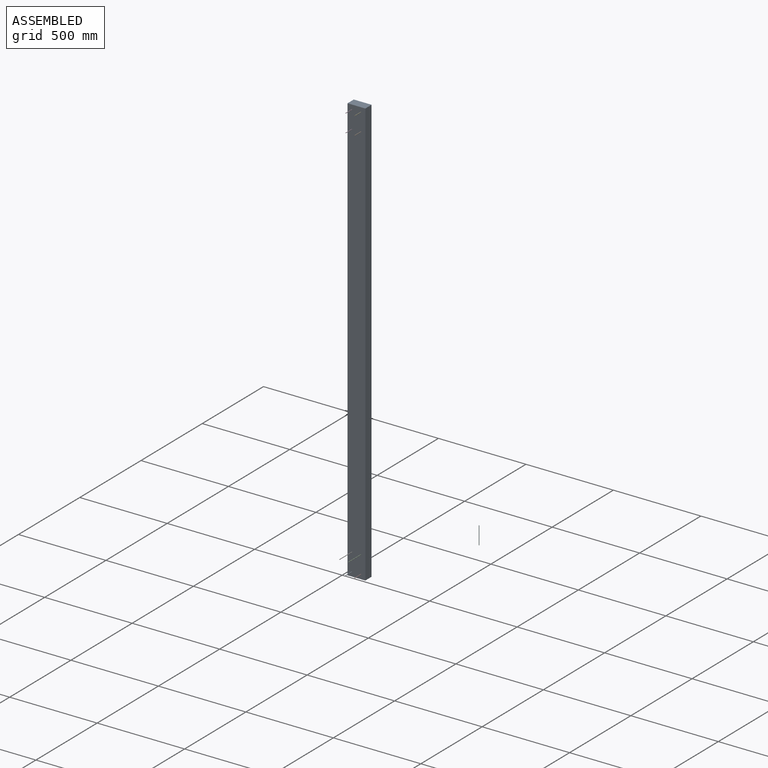
[diagram: assembled view]
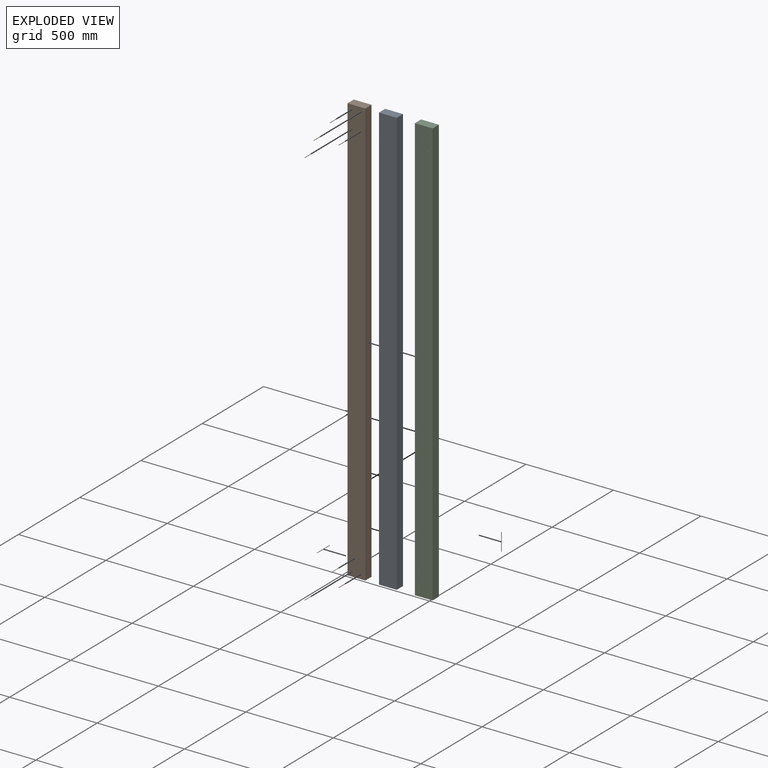
[diagram: exploded view]
GUIDED TOUR — MATED ASSEMBLY (Onshape document 711dff58935e790c66b12ace, AutoMate assembly 711dff58935e790c66b12ace_d7bd29eda4d21fefb9e0359d_4640ce76d5608ae84843be86_default)

This assembly has 12 components, labeled P0..P11 below (a component is one placed occurrence of a part; the same part can appear more than once), held together by 7 mates. A mate is a constraint between two components; its type names the relative motion it leaves free:
  CYLINDRICAL — leaves both rotation about and translation along the listed axis free.
Axis/direction vectors are unit vectors and 'through' points are millimeter coordinates, both in the assembly's world frame.

MATES
  1. CYLINDRICAL "Cylindrical 7": P11 <-> P9, axis (0.000, -1.000, 0.000) through (-804.15, 86.79, 1934.90) mm
  2. CYLINDRICAL "Cylindrical 4": P7 <-> P9, axis (0.000, -1.000, 0.000) through (-753.35, 86.79, -351.10) mm
  3. CYLINDRICAL "Cylindrical 6": P4 <-> P9, axis (0.000, -1.000, 0.000) through (-753.35, 86.79, 2036.50) mm
  4. CYLINDRICAL "Cylindrical 8": P1 <-> P9, axis (0.000, -1.000, 0.000) through (-753.35, 86.79, 1934.90) mm
  5. CYLINDRICAL "Cylindrical 3": P8 <-> P9, axis (0.000, -1.000, 0.000) through (-804.15, 86.79, -351.10) mm
  6. CYLINDRICAL "Cylindrical 5": P3 <-> P9, axis (0.000, -1.000, 0.000) through (-804.15, 86.79, 2036.50) mm
  7. CYLINDRICAL "Cylindrical 2": P10 <-> P9, axis (0.000, -1.000, 0.000) through (-753.35, 86.79, -249.50) mm

ASSEMBLY ORDER
  1. P9 — the base component [order verified]
  2. P2 [order verified]
  3. P0 [order verified]
  4. P6 [order verified]
  5. P11 [order verified]
  6. P3 [order verified]
  7. P1 [order verified]
  8. P10 [order verified]
  9. P8 [order verified]
  10. P7 [order verified]
  11. P4 [order verified]
  12. P5 [order verified]
(P0, P2 verified with a relaxed clearance tolerance: the source model stores slight part interference there.)
Order-tag legend:
  [order verified] — this step's position reverses a verified removal order: the component was checked to insert without passing through the ones already placed.

Of the 12 components, 12 carry the full construction recipe — the FeatureScript program that regenerates the part's solid from scratch; the rest are supplied as boundary geometry only.
Each toured component is shown spotlighted twice — in the assembled view, then in the exploded view, where a leader line traces a displaced component back to its assembled socket (saturated green if recipe-attached, orange if geometry-only; every other component desaturated gray) — followed by its recipe or geometry summary and the mates that hold it.
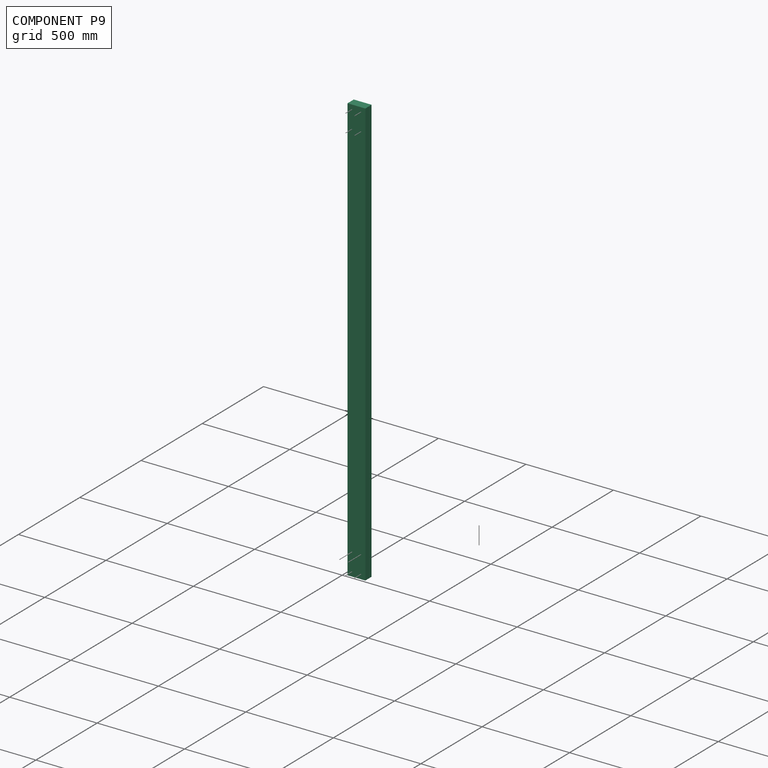
[diagram: component P9 — assembled]
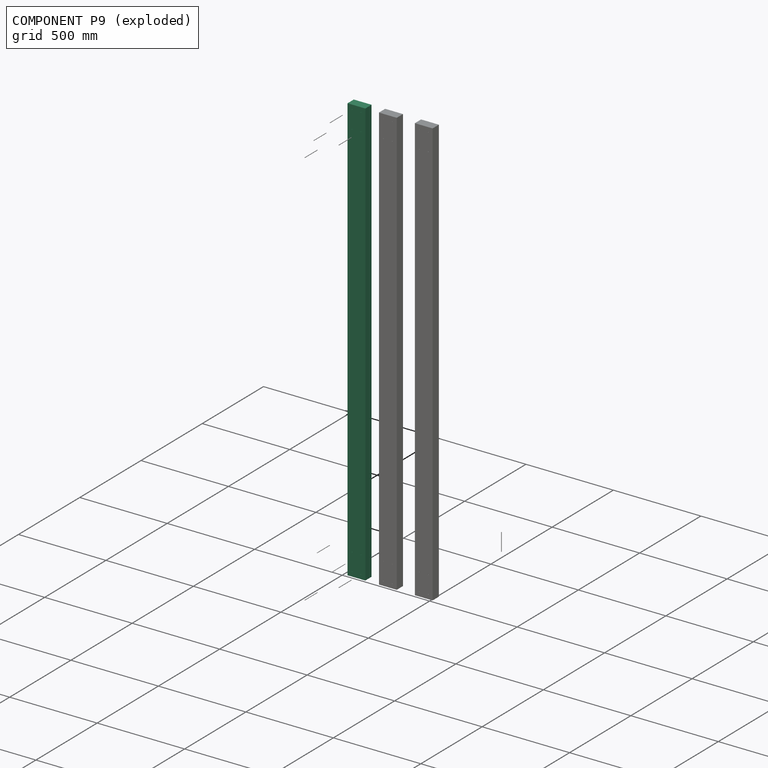
[diagram: component P9 — exploded]
COMPONENT P9 — same part as P0 (CADFS 00226926); its construction recipe is shown at P0.
Held by: CYLINDRICAL mate "Cylindrical 7" to P11; CYLINDRICAL mate "Cylindrical 4" to P7; CYLINDRICAL mate "Cylindrical 6" to P4; CYLINDRICAL mate "Cylindrical 8" to P1; CYLINDRICAL mate "Cylindrical 3" to P8; CYLINDRICAL mate "Cylindrical 5" to P3; CYLINDRICAL mate "Cylindrical 2" to P10.
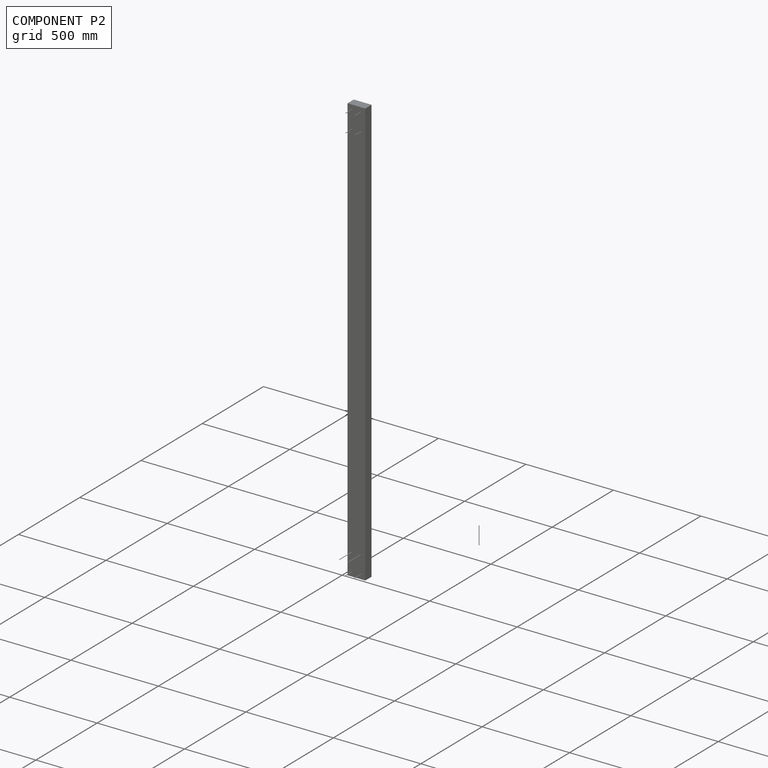
[diagram: component P2 — assembled]
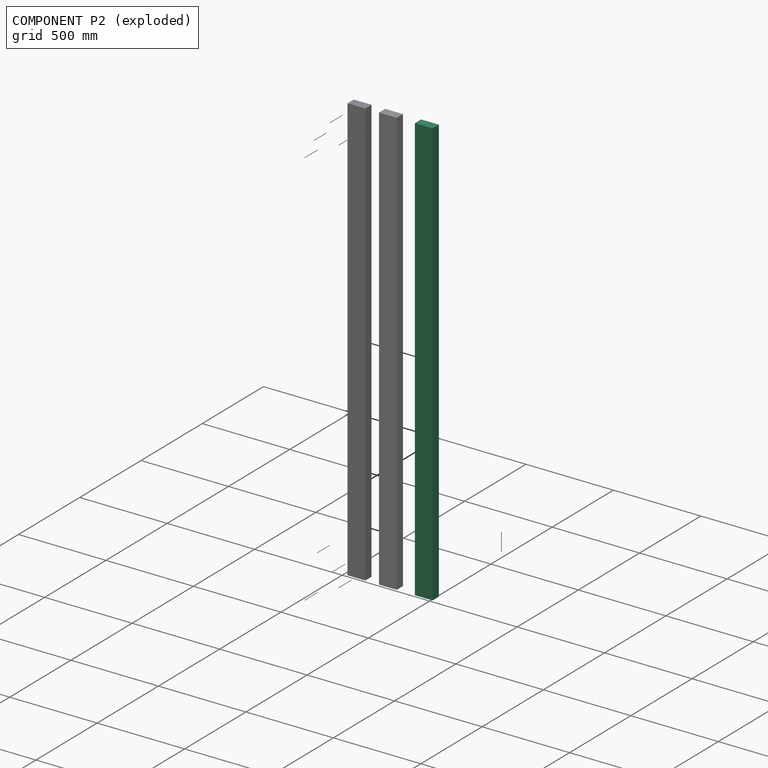
[diagram: component P2 — exploded]
COMPONENT P2 — same part as P0 (CADFS 00226926); its construction recipe is shown at P0.
Held by: no mates (free).
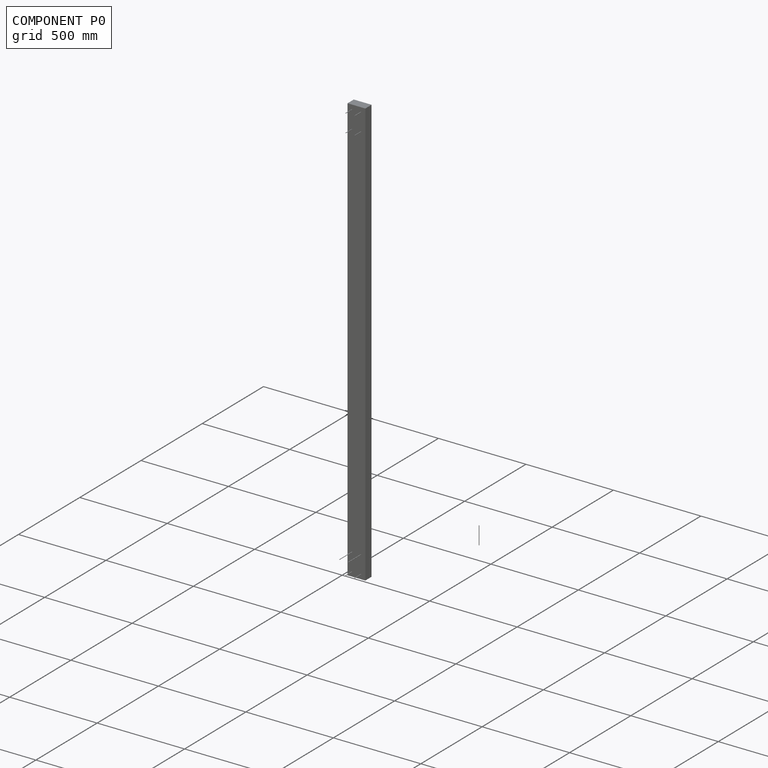
[diagram: component P0 — assembled]
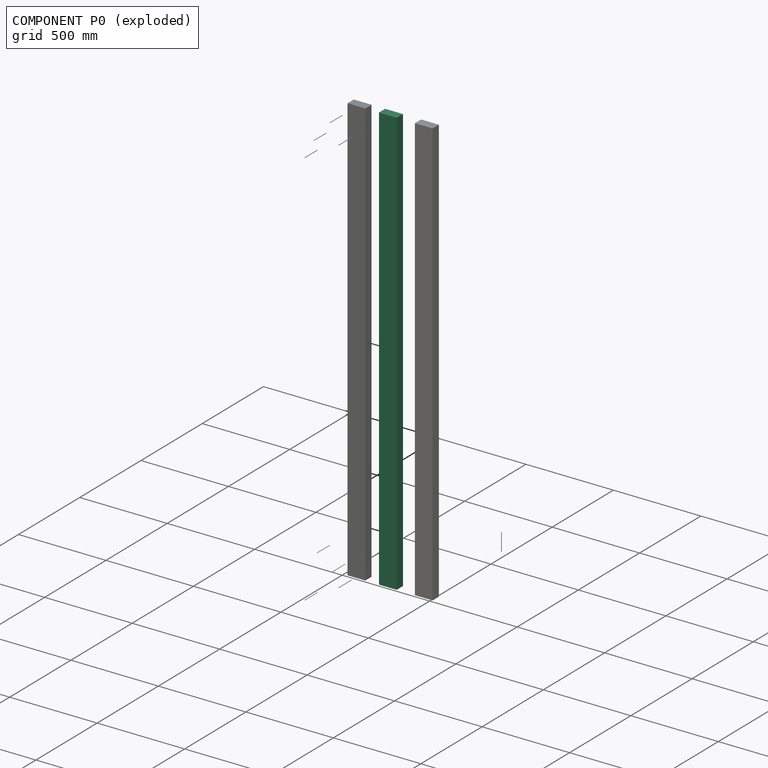
[diagram: component P0 — exploded]
COMPONENT P0 — recipe-attached (CADFS 00226926, mesh-verified: the recipe's output STEP matches this component's geometry to below the mesh-comparison resolution (tessellation chordal tolerance ~3.66 mm)).
Held by: no mates (free).
Construction recipe (FeatureScript — the CAD program that rebuilds this solid; sketch coordinates are in the units given by the * unit suffixes, e.g. mm):

FeatureScript 1511;
import(path : "onshape/std/geometry.fs", version : "1511.0");
import(path : "onshape/std/common.fs", version : "1511.0");
const mm = millimeter;
const VERTEX = EntityType.VERTEX;
const EDGE = EntityType.EDGE;
const FACE = EntityType.FACE;
const BODY = EntityType.BODY;
function v(x, y){return vector(x, y);}
function OD(order){return orderDisambiguation(order);}
function OSD(set){return originalSetDisambiguation(set);}
function TD(topology){return topologyDisambiguation(topology);}
function TDD(query){return trueDependencyDisambiguation(query);}
function sQuery(a, b, c) {return sketchEntityQuery(a, b, c);}

annotation { "Feature Type Name" : "Feature", "Feature Type Description" : "" }
export const myFeature = defineFeature(function(context is Context, id is Id, definition is map)
    precondition{}
    {
        {
            var Q0;
            Q0=qCreatedBy(makeId("Front.planeOp"),FACE);
            var sketch = newSketch(context, id + "F0", { "sketchPlane" : qUnion([Q0])});
            skLineSegment(sketch, "E0.bottom", {"start": v(-51.57, 2308.87) * mm, "end": v(50.03, 2308.87) * mm});
            skLineSegment(sketch, "E0.top", {"start": v(-51.57, -129.53) * mm, "end": v(50.03, -129.53) * mm});
            skLineSegment(sketch, "E0.left", {"start": v(-51.57, 2308.87) * mm, "end": v(-51.57, -129.53) * mm});
            skLineSegment(sketch, "E0.right", {"start": v(50.03, 2308.87) * mm, "end": v(50.03, -129.53) * mm});
            skCircle(sketch, "E1", {"center": v(-26.17, 2283.47) * mm, "radius": 1.59 * mm});
            skCircle(sketch, "E2", {"center": v(24.63, 2283.47) * mm, "radius": 1.59 * mm});
            skCircle(sketch, "E3", {"center": v(-26.17, 2181.87) * mm, "radius": 1.59 * mm});
            skCircle(sketch, "E4", {"center": v(24.63, 2181.87) * mm, "radius": 1.59 * mm});
            skCircle(sketch, "E5", {"center": v(24.63, -104.13) * mm, "radius": 1.59 * mm});
            skCircle(sketch, "E6", {"center": v(-26.17, -104.13) * mm, "radius": 1.59 * mm});
            skCircle(sketch, "E7", {"center": v(24.63, -2.53) * mm, "radius": 1.59 * mm});
            skCircle(sketch, "E8", {"center": v(-26.17, -2.53) * mm, "radius": 1.59 * mm});
            skSolve(sketch);
        }
        {
            var Q0;
            Q0 = qSketchRegion(id + "F0", true);
            extrude(context, id + "F1", {"entities" : qUnion([Q0]), "depth" : 50.8 * mm});
        }
    });
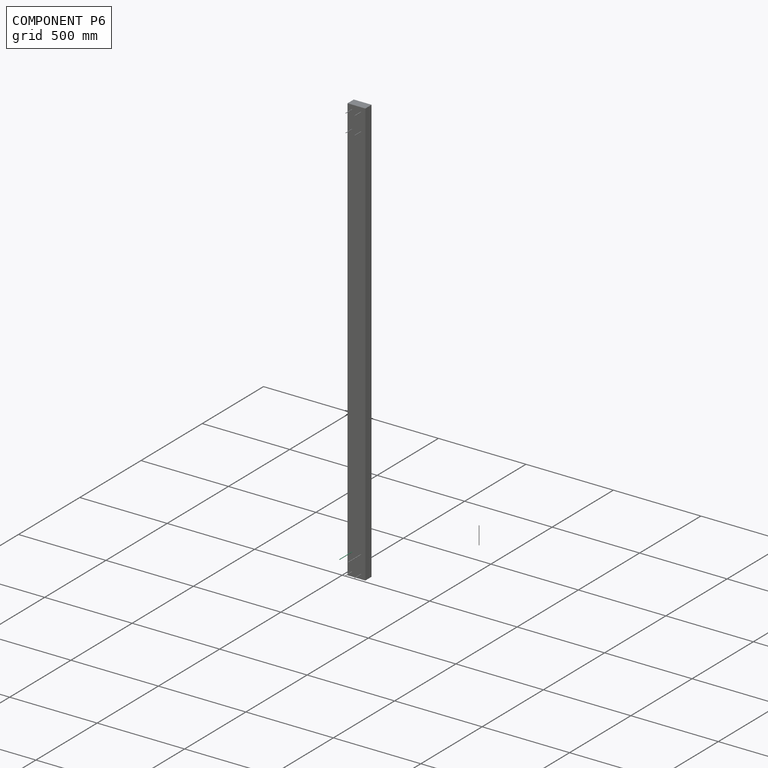
[diagram: component P6 — assembled]
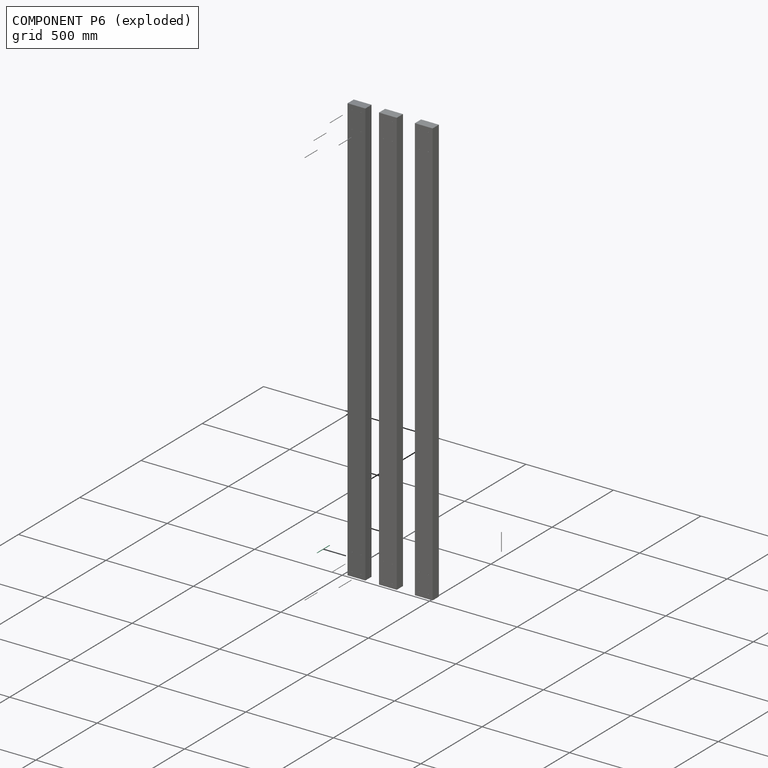
[diagram: component P6 — exploded]
COMPONENT P6 — same part as P1 (CADFS 00226927); its construction recipe is shown at P1.
Held by: no mates (free).
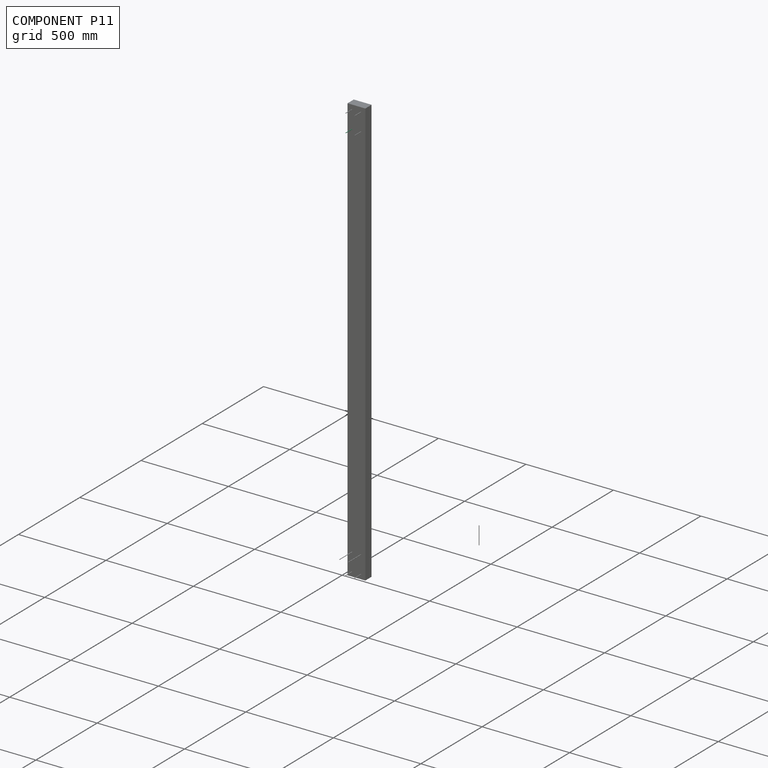
[diagram: component P11 — assembled]
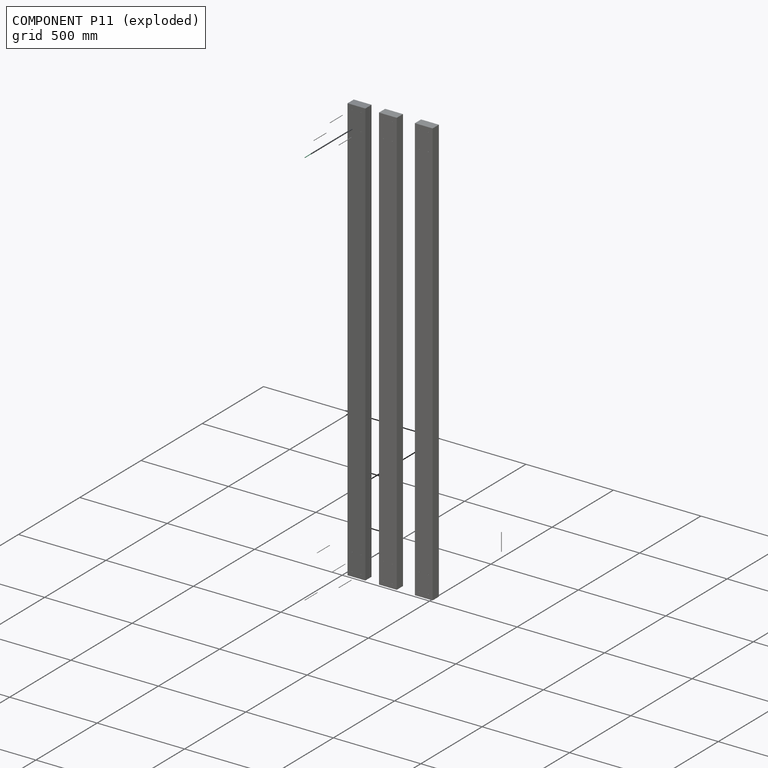
[diagram: component P11 — exploded]
COMPONENT P11 — same part as P1 (CADFS 00226927); its construction recipe is shown at P1.
Held by: CYLINDRICAL mate "Cylindrical 7" to P9.
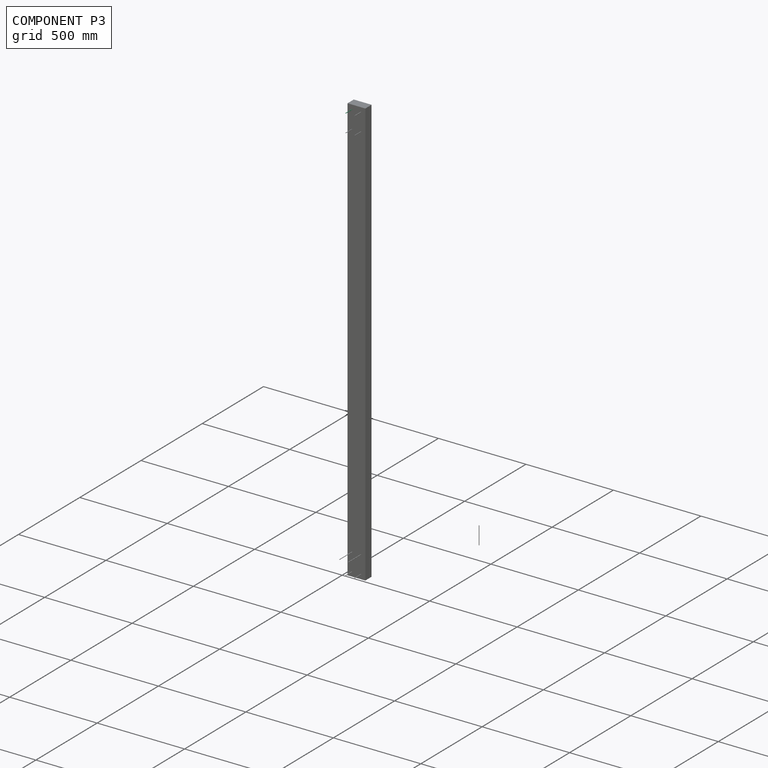
[diagram: component P3 — assembled]
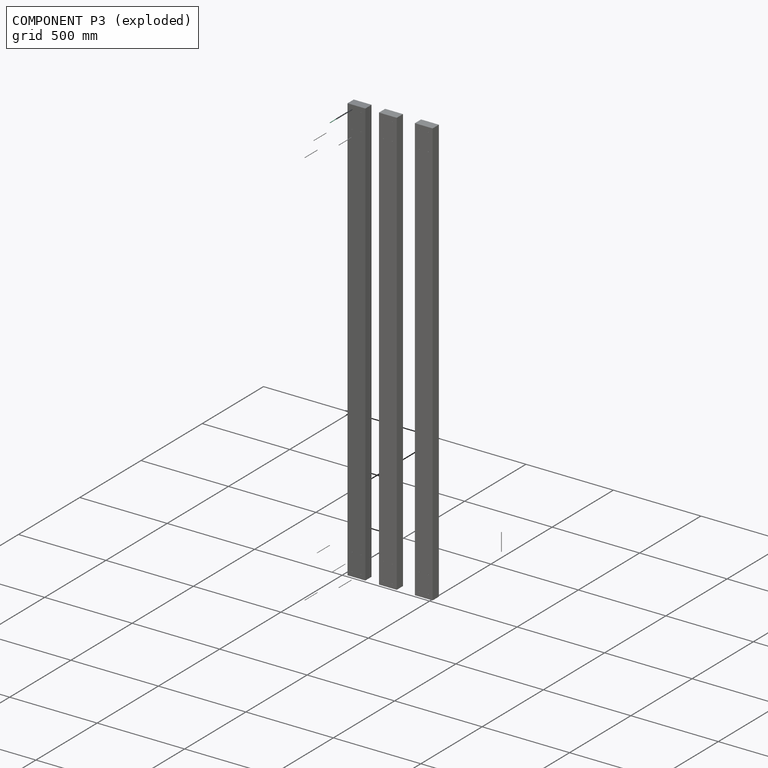
[diagram: component P3 — exploded]
COMPONENT P3 — same part as P1 (CADFS 00226927); its construction recipe is shown at P1.
Held by: CYLINDRICAL mate "Cylindrical 5" to P9.
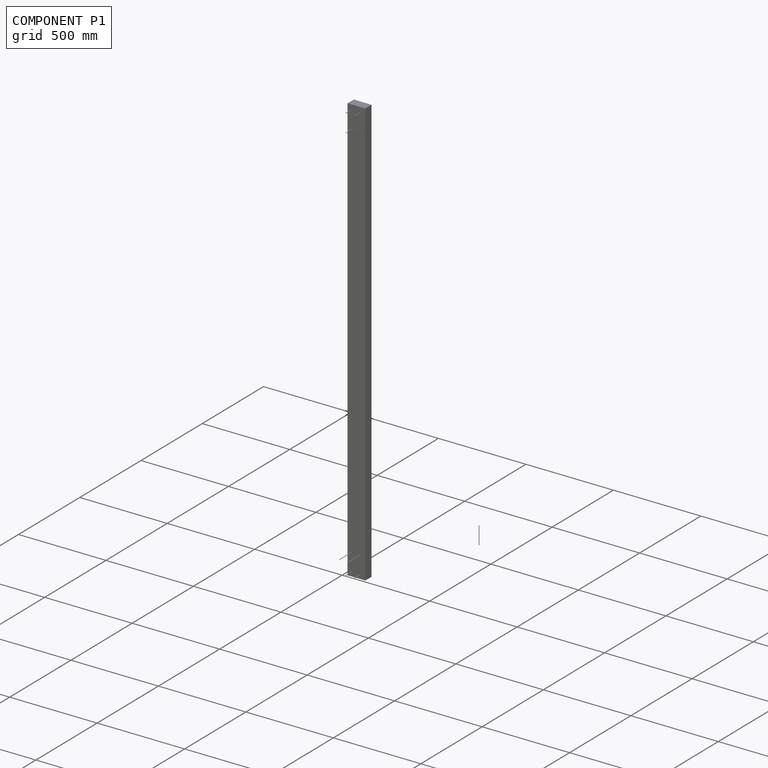
[diagram: component P1 — assembled]
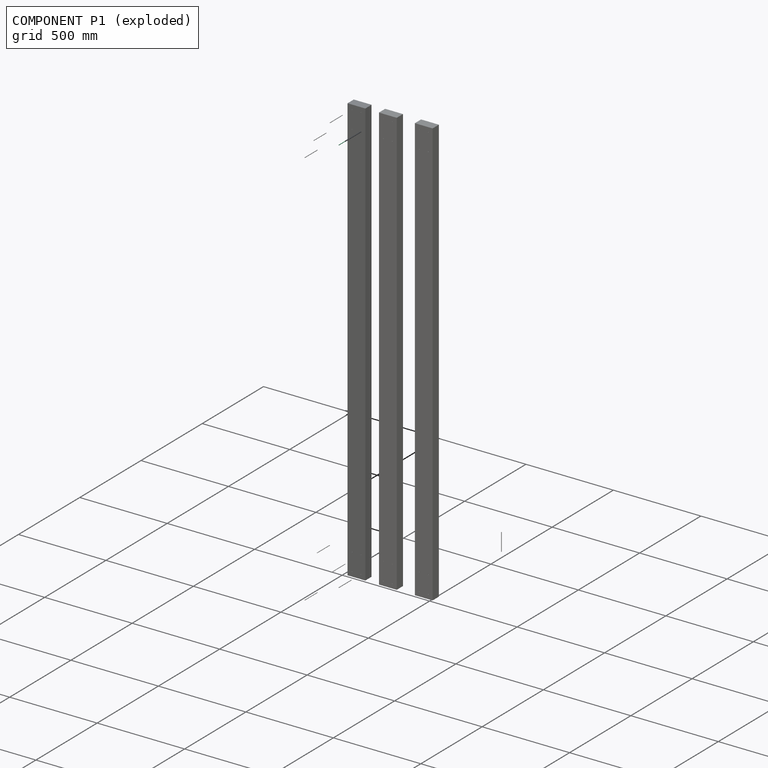
[diagram: component P1 — exploded]
COMPONENT P1 — recipe-attached (CADFS 00226927, mesh-verified: the recipe's output STEP matches this component's geometry to below the mesh-comparison resolution (tessellation chordal tolerance ~0.153 mm)).
Held by: CYLINDRICAL mate "Cylindrical 8" to P9.
Construction recipe (FeatureScript — the CAD program that rebuilds this solid; sketch coordinates are in the units given by the * unit suffixes, e.g. mm):

FeatureScript 1511;
import(path : "onshape/std/geometry.fs", version : "1511.0");
import(path : "onshape/std/common.fs", version : "1511.0");
const mm = millimeter;
const VERTEX = EntityType.VERTEX;
const EDGE = EntityType.EDGE;
const FACE = EntityType.FACE;
const BODY = EntityType.BODY;
function v(x, y){return vector(x, y);}
function OD(order){return orderDisambiguation(order);}
function OSD(set){return originalSetDisambiguation(set);}
function TD(topology){return topologyDisambiguation(topology);}
function TDD(query){return trueDependencyDisambiguation(query);}
function sQuery(a, b, c) {return sketchEntityQuery(a, b, c);}

annotation { "Feature Type Name" : "Feature", "Feature Type Description" : "" }
export const myFeature = defineFeature(function(context is Context, id is Id, definition is map)
    precondition{}
    {
        {
            var Q0;
            Q0=qCreatedBy(makeId("Top.planeOp"),FACE);
            var sketch = newSketch(context, id + "F0", { "sketchPlane" : qUnion([Q0])});
            skCircle(sketch, "E0", {"center": v(-54.05, 52.49) * mm, "radius": 1.59 * mm});
            skSolve(sketch);
        }
        {
            var Q0;
            Q0=makeQuery(id+"F0.imprint","IMPRINT",FACE,{"disambiguationData":[TD([[makeQuery(id+"F0.imprint","IMPRINT",EDGE,{"derivedFrom":sQuery(id+"F0.wireOp",EDGE,"E0")}),1.0]])]});
            extrude(context, id + "F1", {"entities" : qUnion([Q0]), "depth" : 101.6 * mm});
        }
    });
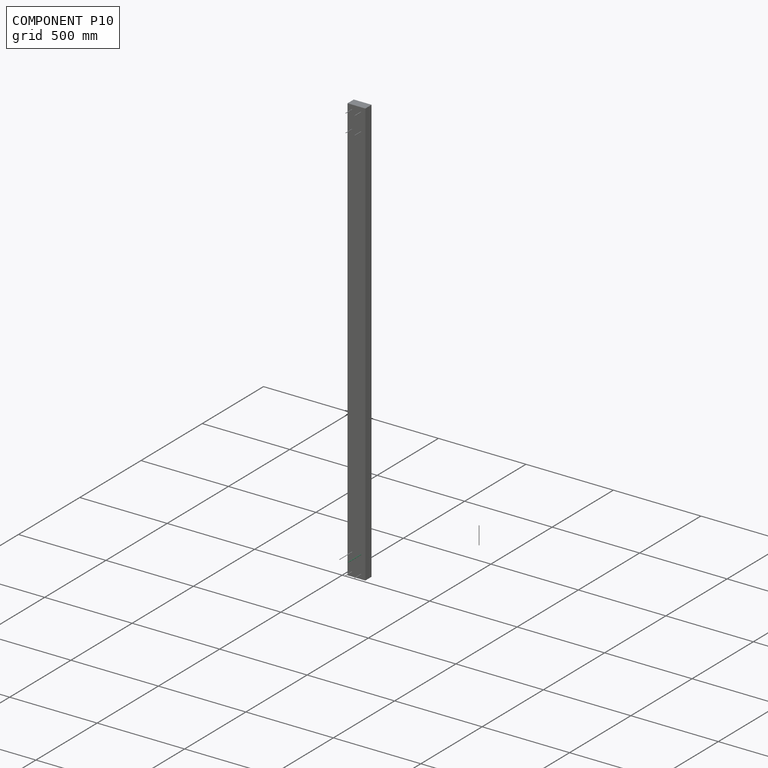
[diagram: component P10 — assembled]
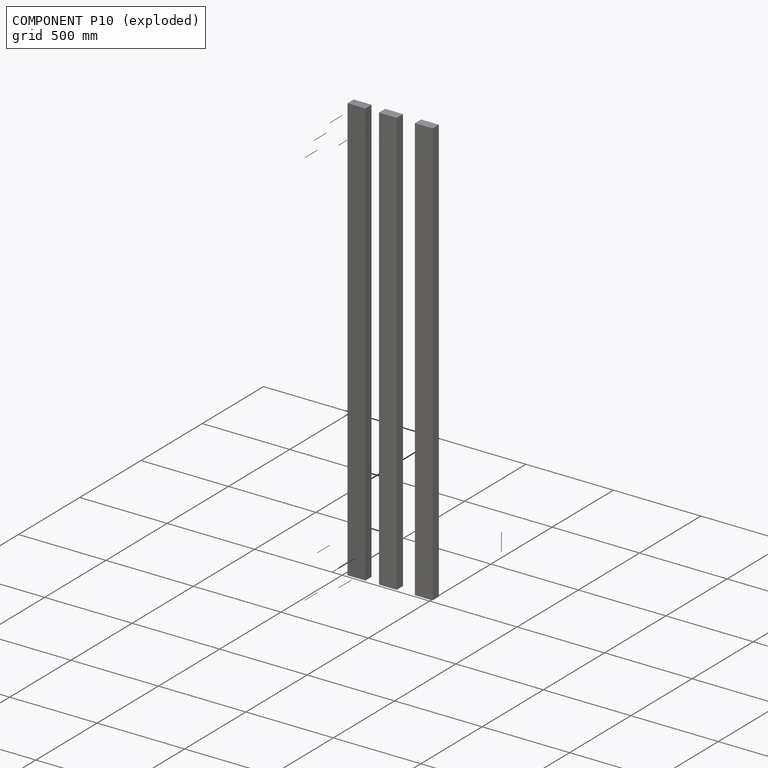
[diagram: component P10 — exploded]
COMPONENT P10 — same part as P1 (CADFS 00226927); its construction recipe is shown at P1.
Held by: CYLINDRICAL mate "Cylindrical 2" to P9.
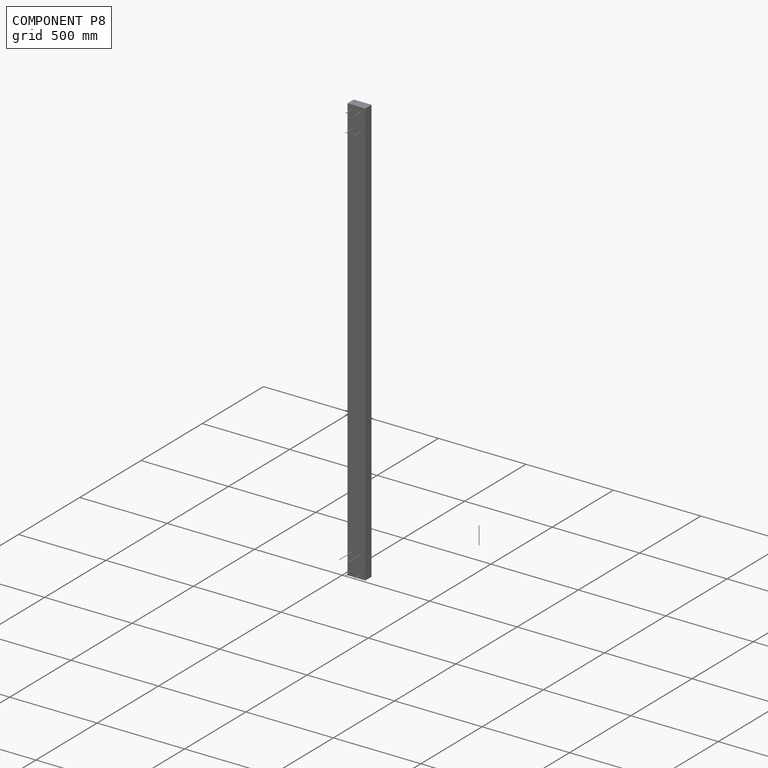
[diagram: component P8 — assembled]
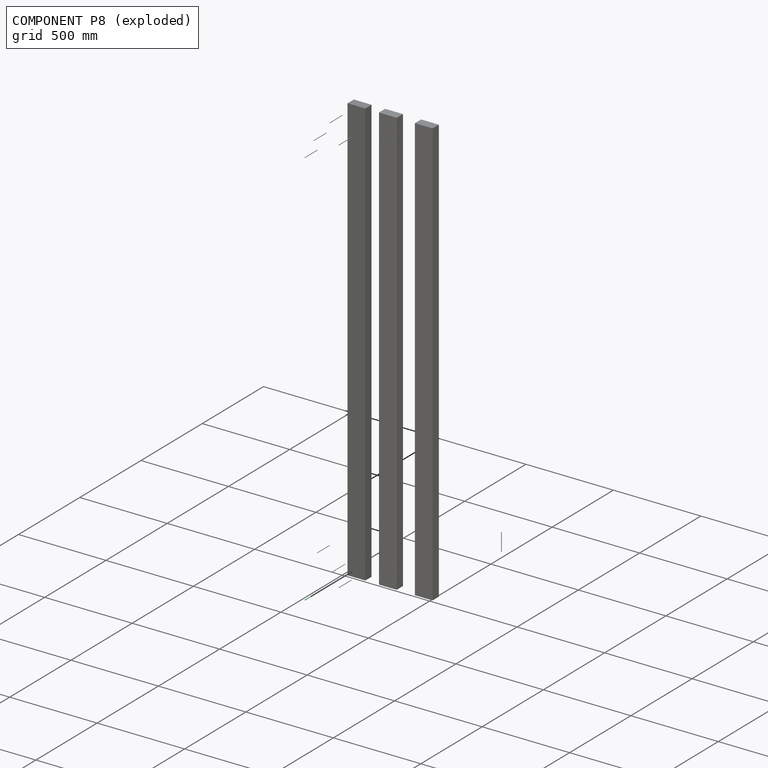
[diagram: component P8 — exploded]
COMPONENT P8 — same part as P1 (CADFS 00226927); its construction recipe is shown at P1.
Held by: CYLINDRICAL mate "Cylindrical 3" to P9.
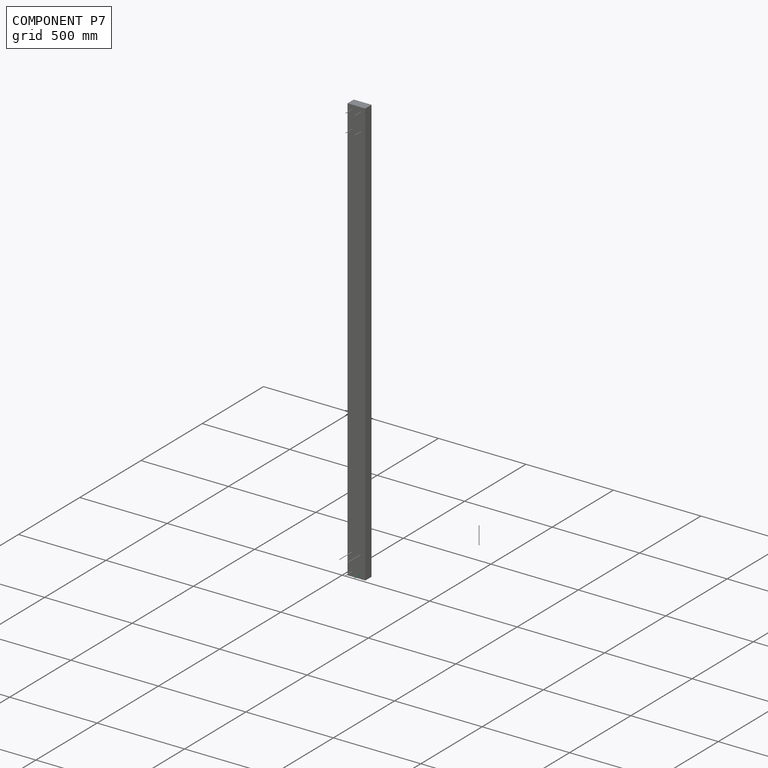
[diagram: component P7 — assembled]
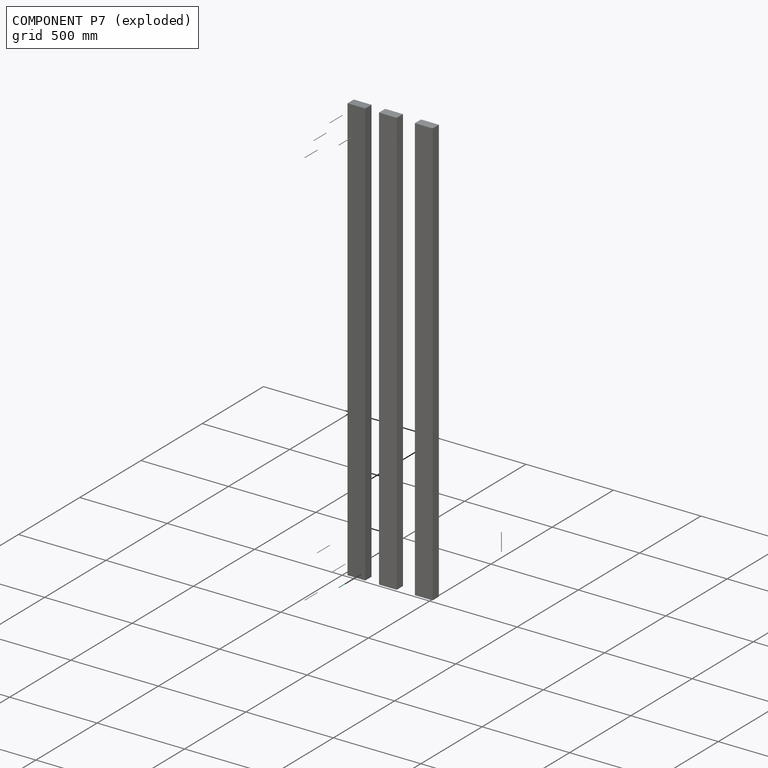
[diagram: component P7 — exploded]
COMPONENT P7 — same part as P1 (CADFS 00226927); its construction recipe is shown at P1.
Held by: CYLINDRICAL mate "Cylindrical 4" to P9.
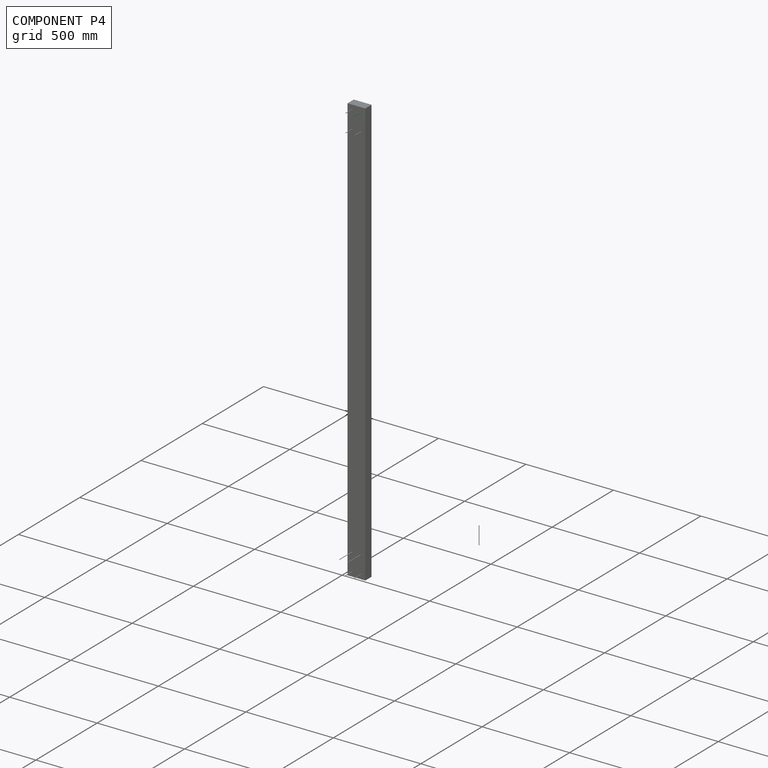
[diagram: component P4 — assembled]
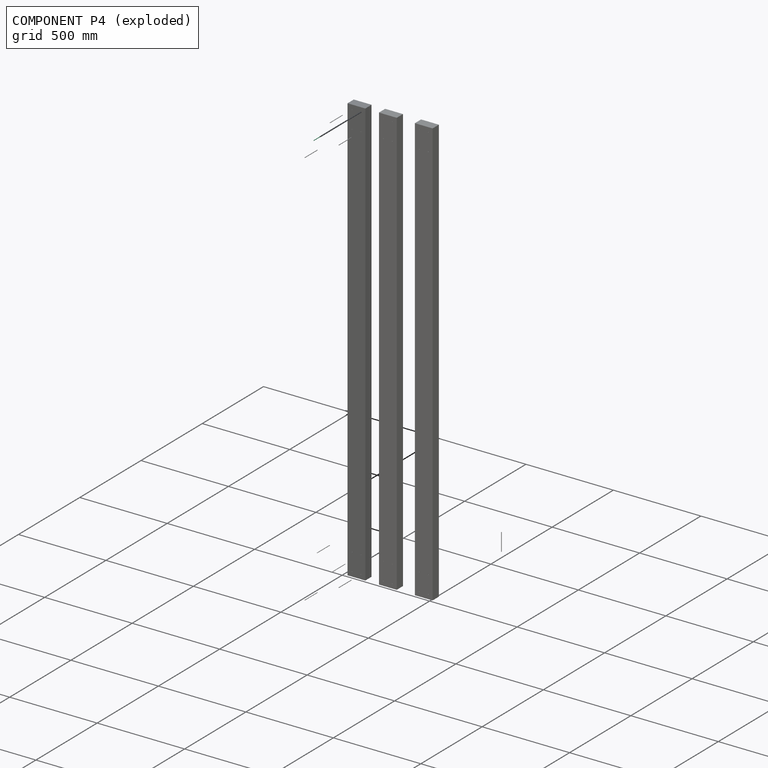
[diagram: component P4 — exploded]
COMPONENT P4 — same part as P1 (CADFS 00226927); its construction recipe is shown at P1.
Held by: CYLINDRICAL mate "Cylindrical 6" to P9.
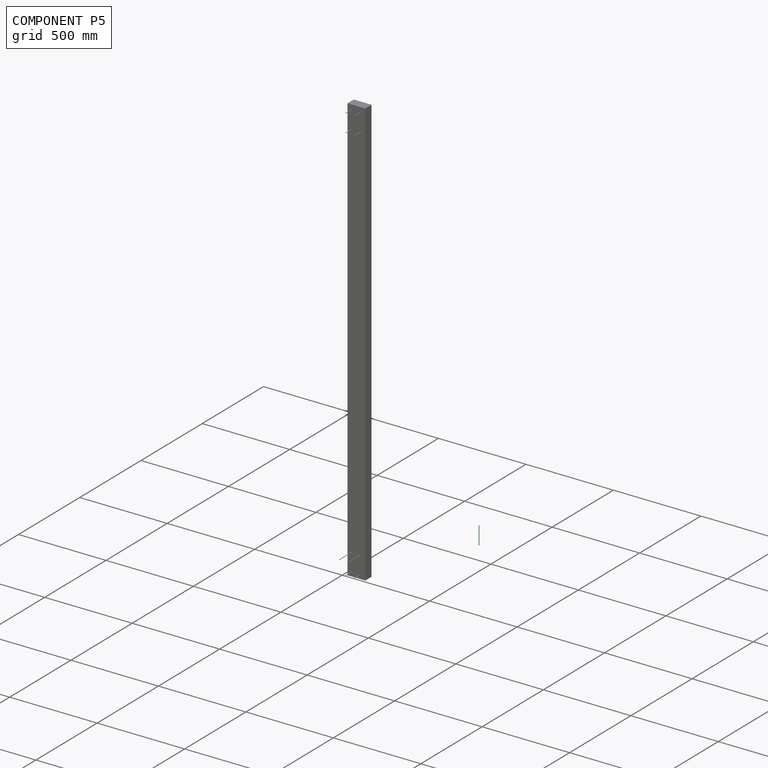
[diagram: component P5 — assembled]
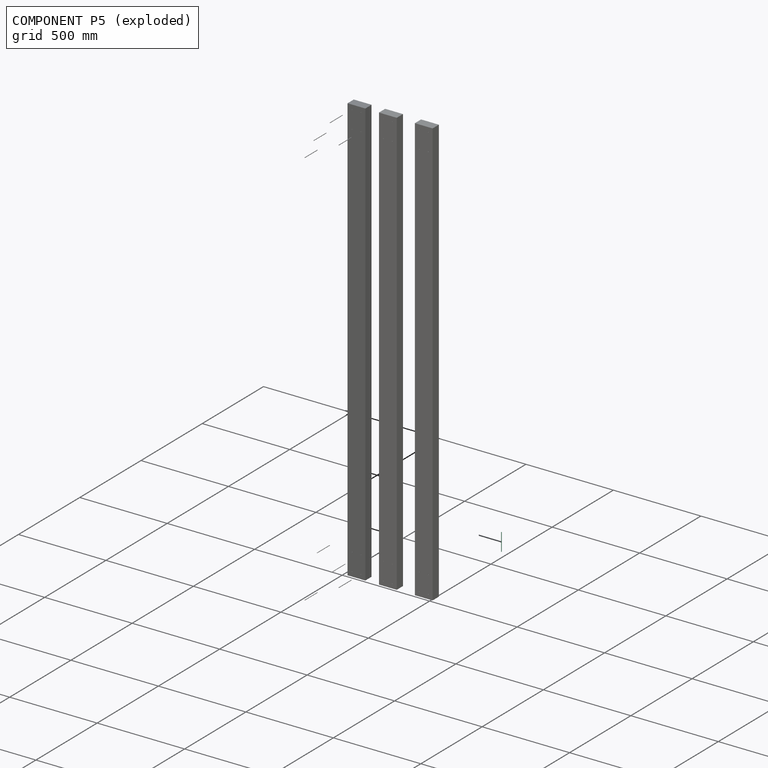
[diagram: component P5 — exploded]
COMPONENT P5 — same part as P1 (CADFS 00226927); its construction recipe is shown at P1.
Held by: no mates (free).
PROVENANCE & LICENSES
Assembly (occurrences, transforms, mates, per-part STEP geometry): AutoMate dataset, Zenodo record 7776208, CC0.
Construction recipes: CADFS (HuggingFace VladPyatov/CADFS, CC-BY-4.0, layered over the ABC dataset), FeatureScript reconstruction programs keyed by ABC model id.
Join: ABC meta listings map ABC model id -> Onshape documentId; within a shared document, parts are matched by geometric signature (bounding-box dims + volume at 0.1% relative tolerance, exact B-rep face/solid counts).
Verification: 12 of this assembly's 12 components carry a recipe attachment, and every attachment is mesh-verified: the CADFS STEP and the AutoMate member STEP were compared as meshes in their shared local frame (symmetric sampled-point-to-mesh distance); worst across the 12 attachments: below the mesh-comparison resolution (tessellation chordal tolerance ~3.66 mm) on a 2441 mm part.
Renders: orthographic iso camera (az 35 / el 25); the floor grid conveys scale (grid pitch printed in each image; no ruler). In the exploded view each component is displaced by its stored offset vector: the offsets alone carry the explosion direction (mate normal/axis signs are not orientation cues and do not encode it), and separation distances are assigned per mate-chain, not proportionally to assembly-order depth.
